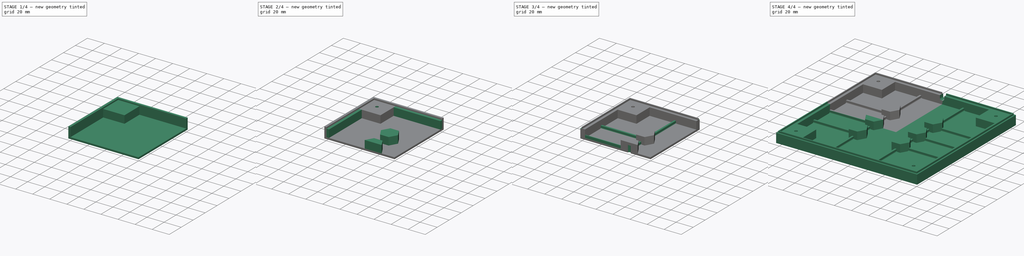
[diagram: build sequence overview — one tinted view per stage of 4, left to right]
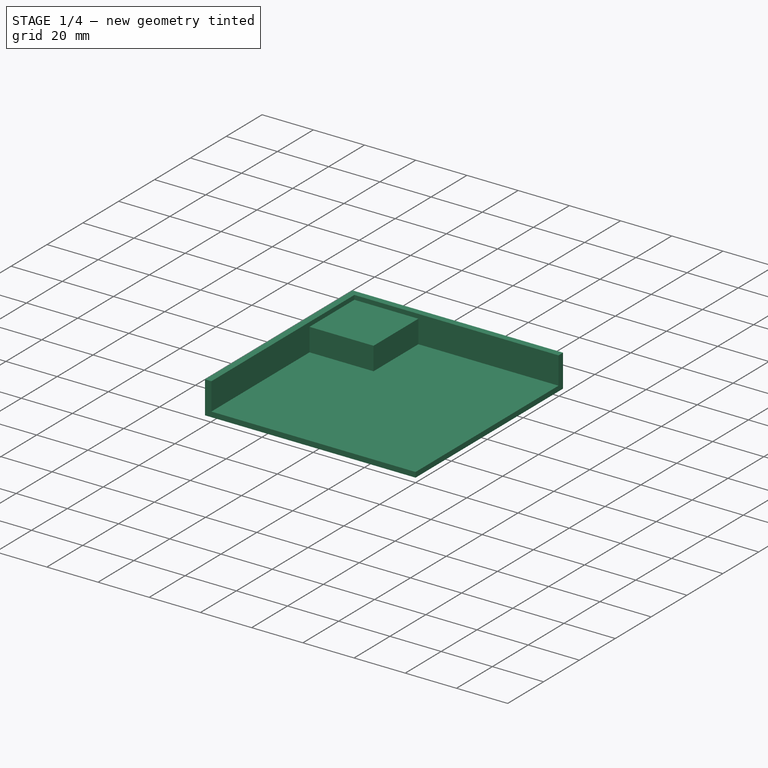
[diagram: stage 1 of 4 — iso view after this stage's code; geometry added in this stage tinted green]
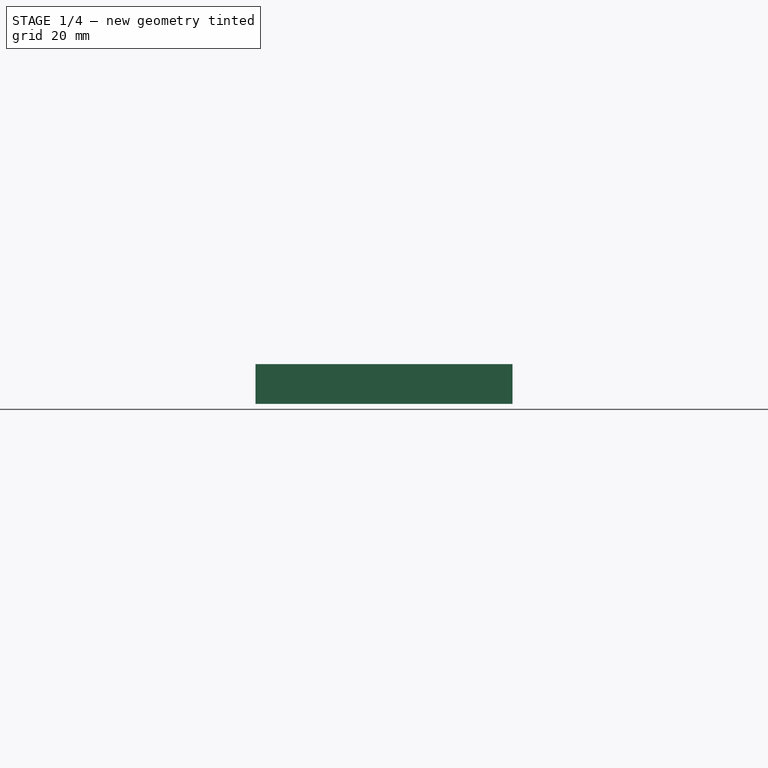
[diagram: stage 1 of 4 — front view after this stage's code; geometry added in this stage tinted green]
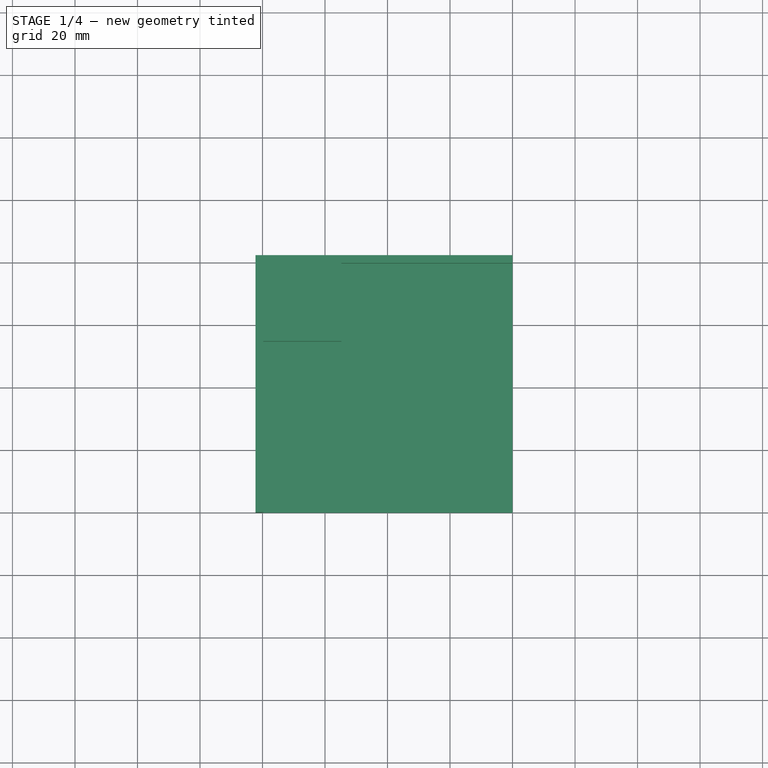
[diagram: stage 1 of 4 — top view after this stage's code; geometry added in this stage tinted green]
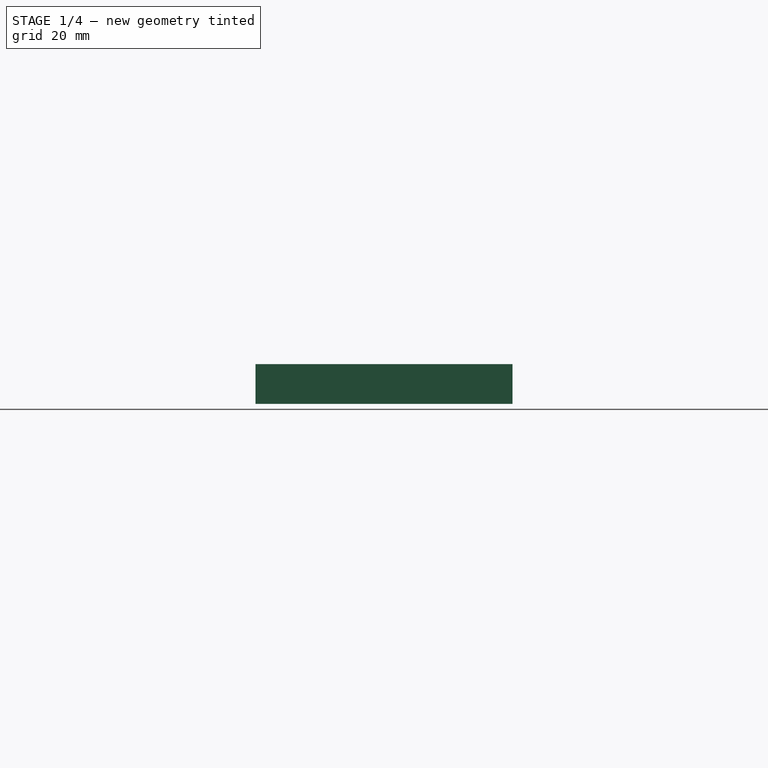
[diagram: stage 1 of 4 — right view after this stage's code; geometry added in this stage tinted green]
FCSTD DOCUMENT  (FreeCAD 0.20R29603 (Git))
Label: case_bottom
License: All rights reserved
LicenseURL: http://en.wikipedia.org/wiki/All_rights_reserved
objects: Sketcher::SketchObject×10, PartDesign::Pad×6, PartDesign::Pocket×4, PartDesign::Fillet×1, PartDesign::Mirrored×1, PartDesign::MultiTransform×1, PartDesign::Body×1, Part::Mirroring×1
note: 36 computed .brp shape members not serialized (recipe doc carries the construction recipe); baked Part::Feature solids carry a one-line shape summary decoded from their .brp

FEATURE [Sketcher::SketchObject] Sketch
  FullyConstrained = true
  MapMode = 5
  Support = -> [XY_Plane]
  sketch-geometry (4):
    g0: LineSegment StartX=0 StartY=0 StartZ=0 EndX=-82.25 EndY=0 EndZ=0
    g1: LineSegment StartX=-82.25 StartY=0 StartZ=0 EndX=-82.25 EndY=82.25 EndZ=0
    g2: LineSegment StartX=-82.25 StartY=82.25 StartZ=0 EndX=0 EndY=82.25 EndZ=0
    g3: LineSegment StartX=0 StartY=82.25 StartZ=0 EndX=0 EndY=0 EndZ=0
  constraints (11):
    c: Coincident(g0,g1)
    c: Coincident(g1,g2)
    c: Coincident(g2,g3)
    c: Coincident(g3,g0)
    c: Horizontal(g0)
    c: Horizontal(g2)
    c: Vertical(g1)
    c: DistanceY(g3,g3) = 82.25
    c: DistanceX(g0,g0) = 82.25
    c: Coincident(g0,g-1)
    c: Vertical(g3)
FEATURE [PartDesign::Pad] Pad
  Direction = (0,0,1)
  Length = 2
  Length2 = 10
  Profile = -> Sketch
  ReferenceAxis = -> Sketch [N_Axis]
  Type = 0
FEATURE [Sketcher::SketchObject] Sketch001
  ExternalGeometry = -> [Pad]
  FullyConstrained = true
  MapMode = 5
  Placement = pos=(0,0,2) rot=(0,0,1;0rad)
  Support = -> [Pad]
  sketch-geometry (6):
    g0: LineSegment StartX=0 StartY=82.25 StartZ=0 EndX=-82.25 EndY=82.25 EndZ=0
    g1: LineSegment StartX=-82.25 StartY=82.25 StartZ=0 EndX=-82.25 EndY=0 EndZ=0
    g2: LineSegment StartX=-82.25 StartY=0 StartZ=0 EndX=-79.75 EndY=0 EndZ=0
    g3: LineSegment StartX=-79.75 StartY=0 StartZ=0 EndX=-79.75 EndY=79.75 EndZ=0
    g4: LineSegment StartX=-79.75 StartY=79.75 StartZ=0 EndX=0 EndY=79.75 EndZ=0
    g5: LineSegment StartX=0 StartY=79.75 StartZ=0 EndX=0 EndY=82.25 EndZ=0
  constraints (15):
    c: Coincident(g0,g-4)
    c: Coincident(g0,g-3)
    c: Coincident(g0,g1)
    c: Coincident(g1,g-5)
    c: Coincident(g1,g2)
    c: Horizontal(g2)
    c: Coincident(g2,g3)
    c: Vertical(g3)
    c: Coincident(g3,g4)
    c: Horizontal(g4)
    c: Coincident(g4,g5)
    c: Coincident(g5,g0)
    c: Vertical(g5)
    c: DistanceY(g5,g5) = 2.5
    c: DistanceX(g2,g2) = 2.5
FEATURE [PartDesign::Pad] Pad001
  BaseFeature = -> Pad
  Direction = (0,0,1)
  Length = 10.7
  Length2 = 10
  Profile = -> Sketch001
  ReferenceAxis = -> Sketch001 [N_Axis]
  Type = 0
FEATURE [Sketcher::SketchObject] Sketch002
  FullyConstrained = false
  MapMode = 5
  Placement = pos=(0,0,2) rot=(0,0,1;0rad)
  Support = -> [Pad001]
  sketch-geometry (4):
    g0: LineSegment StartX=-79.75 StartY=79.75 StartZ=0 EndX=-54.75 EndY=79.75 EndZ=0
    g1: LineSegment StartX=-54.75 StartY=79.75 StartZ=0 EndX=-54.75 EndY=54.75 EndZ=0
    g2: LineSegment StartX=-54.75 StartY=54.75 StartZ=0 EndX=-79.75 EndY=54.75 EndZ=0
    g3: LineSegment StartX=-79.75 StartY=54.75 StartZ=0 EndX=-79.75 EndY=79.75 EndZ=0
  constraints (10):
    c: Coincident(g0,g1)
    c: Coincident(g1,g2)
    c: Coincident(g2,g3)
    c: Coincident(g3,g0)
    c: Horizontal(g0)
    c: Horizontal(g2)
    c: Vertical(g1)
    c: Vertical(g3)
    c: Equal(g2,g1)
    c: DistanceY(g1,g1) = 25
FEATURE [PartDesign::Pad] Pad002
  BaseFeature = -> Pad001
  Direction = (0,0,1)
  Length = 9
  Length2 = 10
  Profile = -> Sketch002
  ReferenceAxis = -> Sketch002 [N_Axis]
  Type = 0
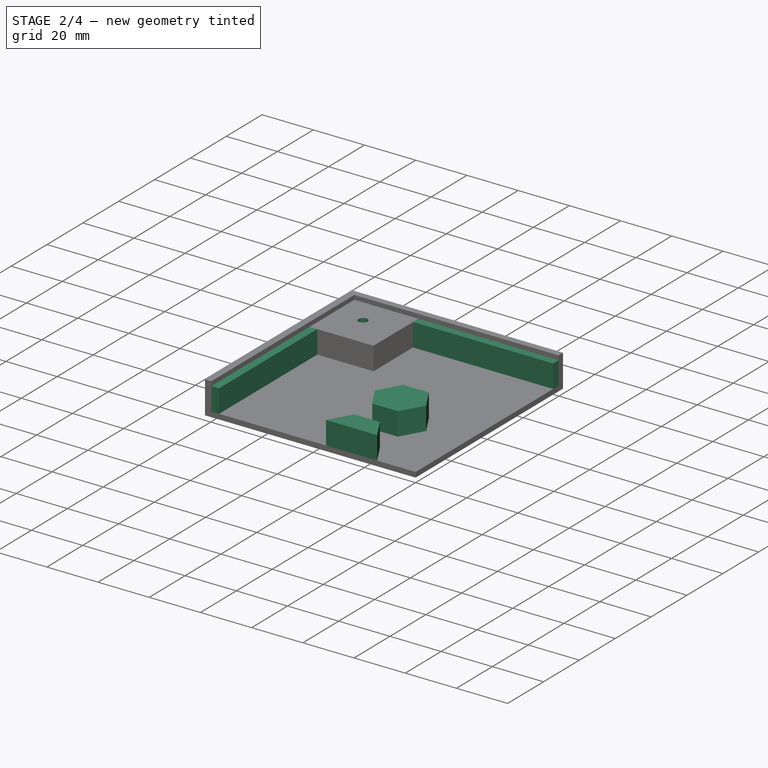
[diagram: stage 2 of 4 — iso view after this stage's code; geometry added in this stage tinted green]
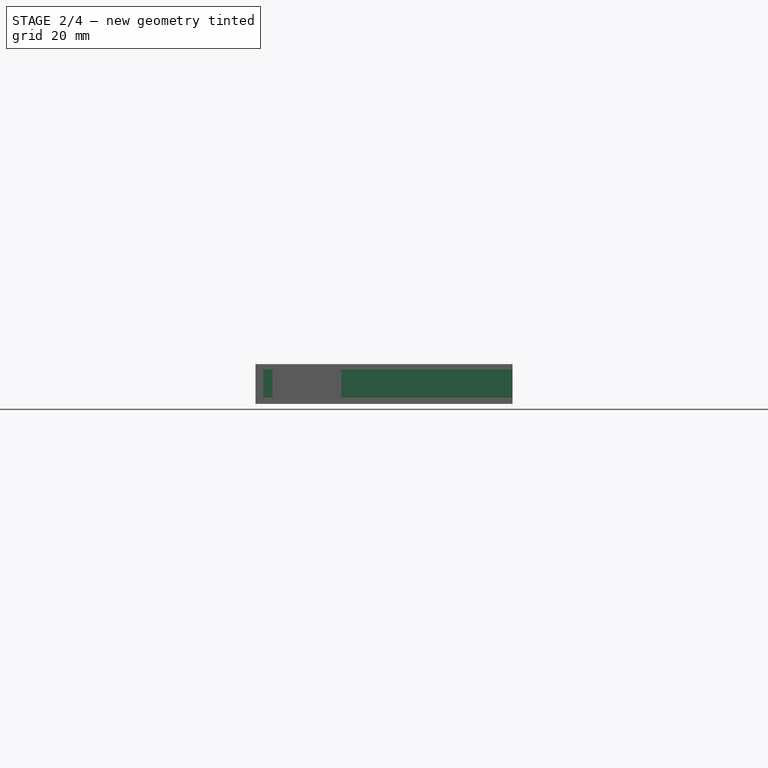
[diagram: stage 2 of 4 — front view after this stage's code; geometry added in this stage tinted green]
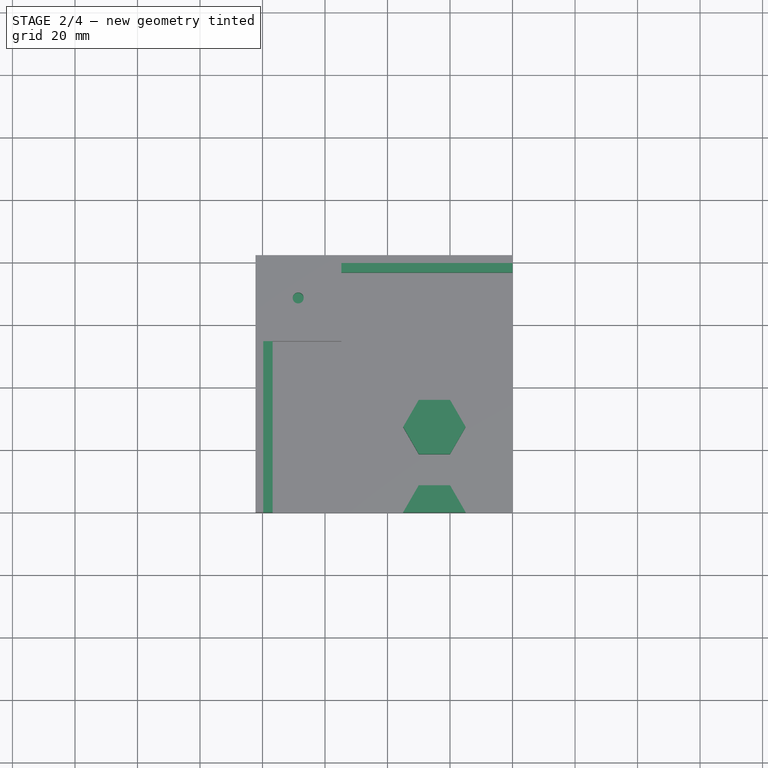
[diagram: stage 2 of 4 — top view after this stage's code; geometry added in this stage tinted green]
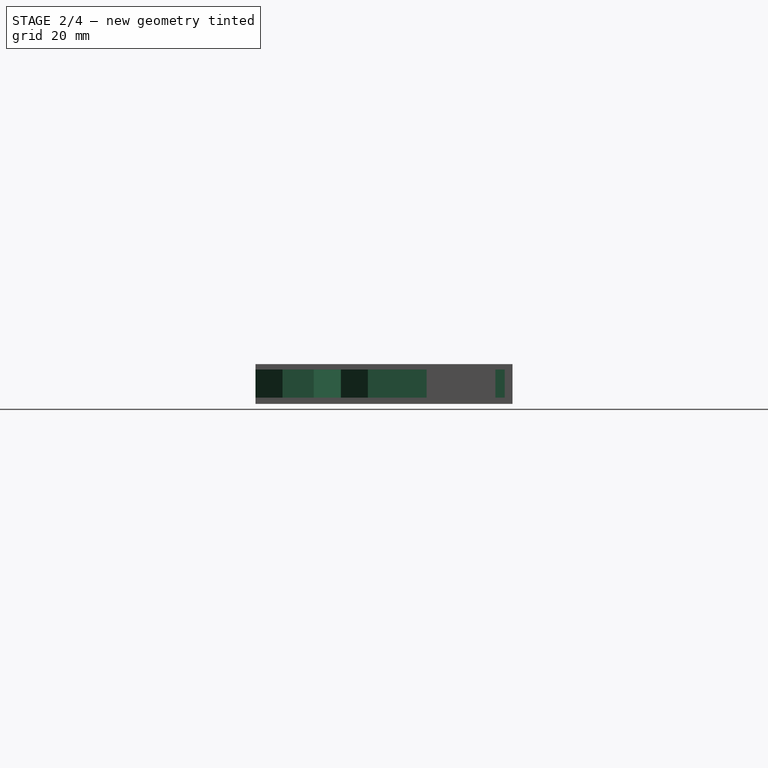
[diagram: stage 2 of 4 — right view after this stage's code; geometry added in this stage tinted green]
FEATURE [Sketcher::SketchObject] Sketch003
  ExternalGeometry = -> [Pad002]
  FullyConstrained = true
  MapMode = 5
  Placement = pos=(0,0,2) rot=(0,0,1;0rad)
  Support = -> [Pad002]
  sketch-geometry (8):
    g0: LineSegment StartX=-54.75 StartY=79.75 StartZ=0 EndX=0 EndY=79.75 EndZ=0
    g1: LineSegment StartX=0 StartY=79.75 StartZ=0 EndX=0 EndY=76.75 EndZ=0
    g2: LineSegment StartX=0 StartY=76.75 StartZ=0 EndX=-54.75 EndY=76.75 EndZ=0
    g3: LineSegment StartX=-54.75 StartY=76.75 StartZ=0 EndX=-54.75 EndY=79.75 EndZ=0
    g4: LineSegment StartX=-79.75 StartY=54.75 StartZ=0 EndX=-76.75 EndY=54.75 EndZ=0
    g5: LineSegment StartX=-76.75 StartY=54.75 StartZ=0 EndX=-76.75 EndY=0 EndZ=0
    g6: LineSegment StartX=-76.75 StartY=0 StartZ=0 EndX=-79.75 EndY=0 EndZ=0
    g7: LineSegment StartX=-79.75 StartY=0 StartZ=0 EndX=-79.75 EndY=54.75 EndZ=0
  constraints (22):
    c: Coincident(g0,g1)
    c: Coincident(g1,g2)
    c: Coincident(g2,g3)
    c: Coincident(g3,g0)
    c: Horizontal(g0)
    c: Horizontal(g2)
    c: Vertical(g1)
    c: Vertical(g3)
    c: Coincident(g0,g-3)
    c: PointOnObject(g1,g-2)
    c: Coincident(g4,g5)
    c: Coincident(g5,g6)
    c: Coincident(g6,g7)
    c: Coincident(g7,g4)
    c: Horizontal(g4)
    c: Horizontal(g6)
    c: Vertical(g5)
    c: Vertical(g7)
    c: Coincident(g4,g-6)
    c: PointOnObject(g5,g-1)
    c: Equal(g6,g1)
    c: DistanceY(g1,g1) = 3
FEATURE [PartDesign::Pad] Pad003
  BaseFeature = -> Pad002
  Direction = (0,0,1)
  Length = 9
  Length2 = 10
  Profile = -> Sketch003
  ReferenceAxis = -> Sketch003 [N_Axis]
  Type = 0
FEATURE [Sketcher::SketchObject] Sketch004
  FullyConstrained = true
  MapMode = 5
  Placement = pos=(0,0,11) rot=(0,0,1;0rad)
  Support = -> [Pad003]
  sketch-geometry (1):
    g0: Circle CenterX=-68.58 CenterY=68.58 CenterZ=0 NormalX=0 NormalY=0 NormalZ=1 AngleXU=0 Radius=1.75
  constraints (3):
    c: DistanceX(g0,g-1) = 68.58
    c: DistanceY(g-1,g0) = 68.58
    c: Diameter(g0) = 3.5
FEATURE [PartDesign::Pocket] Pocket
  BaseFeature = -> Pad003
  Direction = (0,0,-1)
  Length = 8
  Length2 = 5
  Profile = -> Sketch004
  ReferenceAxis = -> Sketch004 [N_Axis]
  Type = 0
FEATURE [Sketcher::SketchObject] Sketch005
  ExternalGeometry = -> [Pocket]
  FullyConstrained = true
  MapMode = 5
  Placement = pos=(0,0,2) rot=(0,0,1;0rad)
  Support = -> [Pocket]
  sketch-geometry (20):
    g0: LineSegment StartX=10 StartY=-30 StartZ=0 EndX=10 EndY=30 EndZ=0
    g1: LineSegment StartX=10 StartY=30 StartZ=0 EndX=-10 EndY=30 EndZ=0
    g2: LineSegment StartX=-10 StartY=30 StartZ=0 EndX=-10 EndY=-30 EndZ=0
    g3: LineSegment StartX=-10 StartY=-30 StartZ=0 EndX=10 EndY=-30 EndZ=0
    g4: GeomPoint X=0 Y=0 Z=0
    g5: LineSegment StartX=-30 StartY=-8.66025 StartZ=0 EndX=-20 EndY=-8.66025 EndZ=0
    g6: LineSegment StartX=-20 StartY=-8.66025 StartZ=0 EndX=-15 EndY=0 EndZ=0
    g7: LineSegment StartX=-15 StartY=0 StartZ=0 EndX=-20 EndY=8.66025 EndZ=0
    g8: LineSegment StartX=-20 StartY=8.66025 StartZ=0 EndX=-30 EndY=8.66025 EndZ=0
    g9: LineSegment StartX=-30 StartY=8.66025 StartZ=0 EndX=-35 EndY=0 EndZ=0
    g10: LineSegment StartX=-35 StartY=0 StartZ=0 EndX=-30 EndY=-8.66025 EndZ=0
    g11: Circle CenterX=-25 CenterY=0 CenterZ=0 NormalX=0 NormalY=0 NormalZ=1 AngleXU=0 Radius=10
    g12: LineSegment StartX=-20 StartY=18.6603 StartZ=0 EndX=-15 EndY=27.3205 EndZ=0
    g13: LineSegment StartX=-15 StartY=27.3205 StartZ=0 EndX=-20 EndY=35.9808 EndZ=0
    g14: LineSegment StartX=-20 StartY=35.9808 StartZ=0 EndX=-30 EndY=35.9808 EndZ=0
    g15: LineSegment StartX=-30 StartY=35.9808 StartZ=0 EndX=-35 EndY=27.3205 EndZ=0
    g16: LineSegment StartX=-35 StartY=27.3205 StartZ=0 EndX=-30 EndY=18.6603 EndZ=0
    g17: LineSegment StartX=-30 StartY=18.6603 StartZ=0 EndX=-20 EndY=18.6603 EndZ=0
    g18: Circle CenterX=-25 CenterY=27.3205 CenterZ=0 NormalX=0 NormalY=0 NormalZ=1 AngleXU=0 Radius=10
    g19: LineSegment StartX=-35 StartY=0 StartZ=0 EndX=-15 EndY=0 EndZ=0
  constraints (48):
    c: Coincident(g0,g1)
    c: Coincident(g1,g2)
    c: Coincident(g2,g3)
    c: Coincident(g3,g0)
    c: Horizontal(g1)
    c: Horizontal(g3)
    c: Vertical(g0)
    c: Vertical(g2)
    c: Symmetric(g1,g0,g4)
    c: Coincident(g4,g-1)
    c: DistanceY(g0,g0) = 60
    c: DistanceX(g3,g3) = 20
    c: Coincident(g5,g6)
    c: Coincident(g6,g7)
    c: Coincident(g7,g8)
    c: Coincident(g8,g9)
    c: Coincident(g9,g10)
    c: Coincident(g10,g5)
    c: Equal(g5, g6-g10) x5
    c: PointOnObject(g5,g11)
    c: PointOnObject(g6,g11)
    c: PointOnObject(g7,g11)
    c: PointOnObject(g8,g11)
    c: PointOnObject(g9,g11)
    c: PointOnObject(g10,g11)
    c: PointOnObject(g11,g-1)
    c: PointOnObject(g9,g-1)
    c: Diameter(g11) = 20
    c: DistanceX(g6,g2) = 5
    c: Coincident(g12,g13)
    c: Coincident(g13,g14)
    c: Coincident(g14,g15)
    c: Coincident(g15,g16)
    c: Coincident(g16,g17)
    c: Coincident(g17,g12)
    c: Equal(g12, g13-g17) x5
    c: PointOnObject(g12,g18)
    c: PointOnObject(g13,g18)
    c: PointOnObject(g14,g18)
    c: PointOnObject(g15,g18)
    c: PointOnObject(g16,g18)
    c: PointOnObject(g17,g18)
    c: Equal(g18,g11)
    c: Vertical(g15,g9)
    c: Horizontal(g16,g12)
    c: DistanceY(g7,g12) = 10
    c: Coincident(g19,g9)
    c: Coincident(g19,g7)
FEATURE [PartDesign::Pad] Pad004
  BaseFeature = -> Pocket
  Direction = (0,0,1)
  Length = 9
  Length2 = 10
  Profile = -> Sketch005
  ReferenceAxis = -> Sketch005 [N_Axis]
  Type = 0
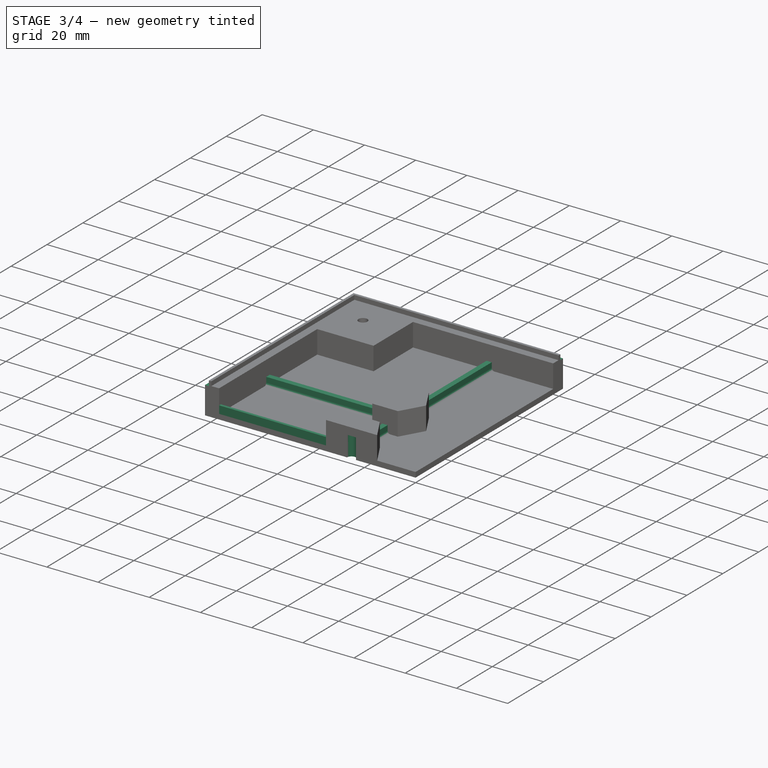
[diagram: stage 3 of 4 — iso view after this stage's code; geometry added in this stage tinted green]
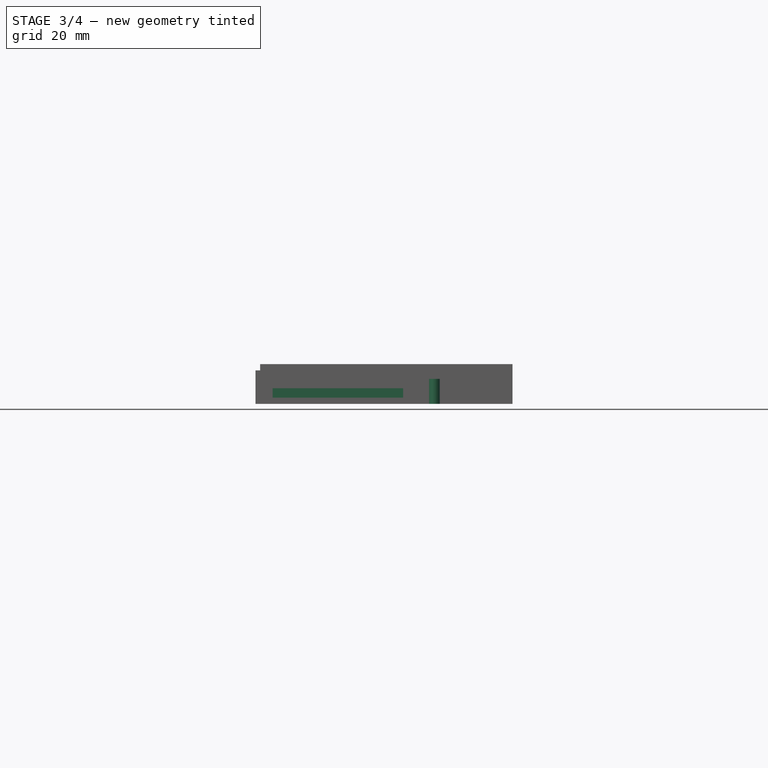
[diagram: stage 3 of 4 — front view after this stage's code; geometry added in this stage tinted green]
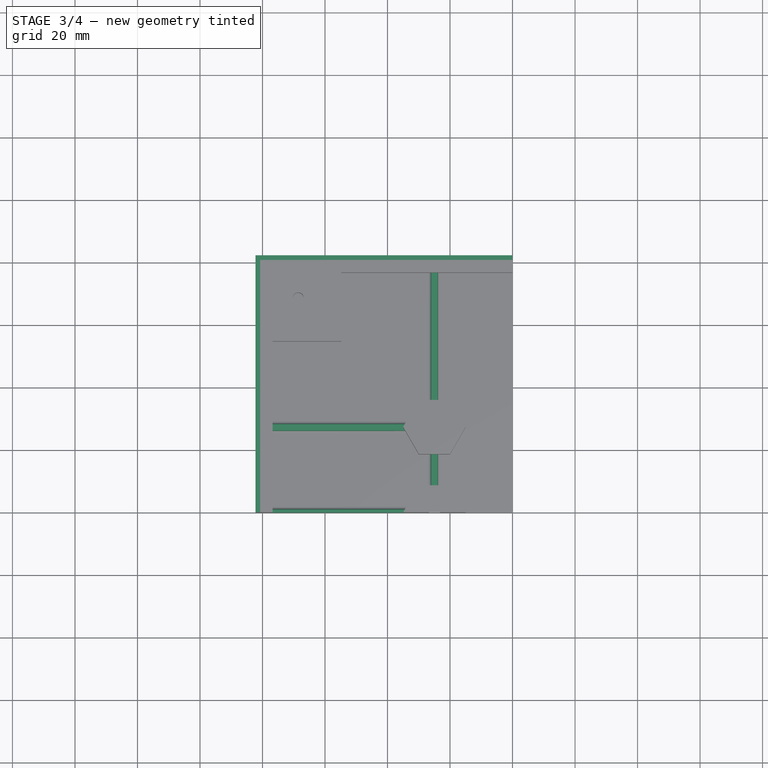
[diagram: stage 3 of 4 — top view after this stage's code; geometry added in this stage tinted green]
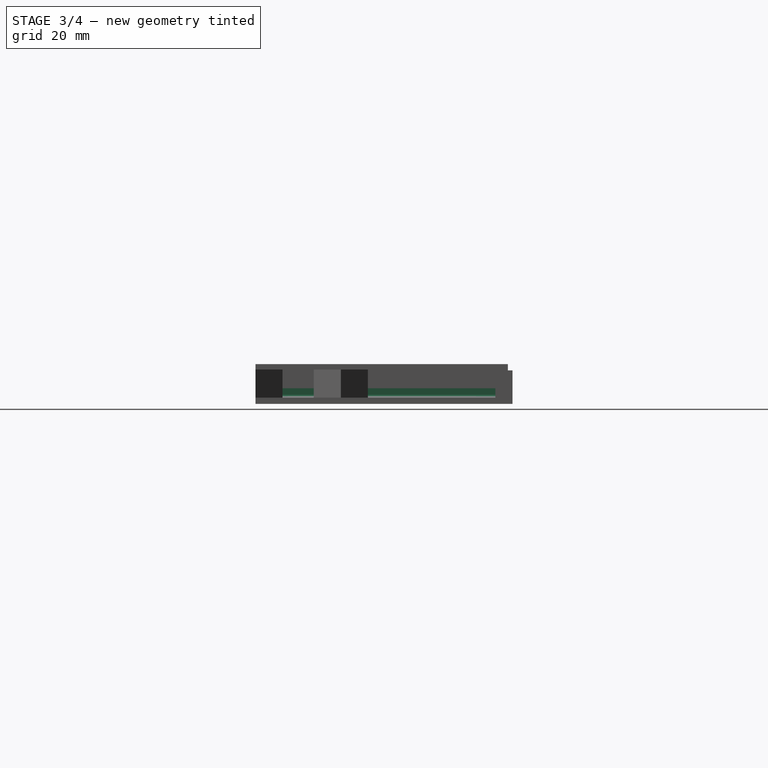
[diagram: stage 3 of 4 — right view after this stage's code; geometry added in this stage tinted green]
FEATURE [Sketcher::SketchObject] Sketch006
  ExternalGeometry = -> [Pad004]
  FullyConstrained = true
  MapMode = 5
  Placement = pos=(0,0,2) rot=(0,0,1;0rad)
  Support = -> [Pad004]
  sketch-geometry (19):
    g0: LineSegment StartX=-26 StartY=35.9808 StartZ=0 EndX=-24 EndY=35.9808 EndZ=0
    g1: LineSegment StartX=-24 StartY=35.9808 StartZ=0 EndX=-24 EndY=76.75 EndZ=0
    g2: LineSegment StartX=-24 StartY=76.75 StartZ=0 EndX=-26 EndY=76.75 EndZ=0
    g3: LineSegment StartX=-26 StartY=76.75 StartZ=0 EndX=-26 EndY=35.9808 EndZ=0
    g4: LineSegment StartX=-26 StartY=18.6603 StartZ=0 EndX=-24 EndY=18.6603 EndZ=0
    g5: LineSegment StartX=-24 StartY=18.6603 StartZ=0 EndX=-24 EndY=8.66025 EndZ=0
    g6: LineSegment StartX=-24 StartY=8.66025 StartZ=0 EndX=-26 EndY=8.66025 EndZ=0
    g7: LineSegment StartX=-26 StartY=8.66025 StartZ=0 EndX=-26 EndY=18.6603 EndZ=0
    g8: LineSegment StartX=-76.75 StartY=0 StartZ=0 EndX=-76.75 EndY=1 EndZ=0
    g9: LineSegment StartX=-76.75 StartY=1 StartZ=0 EndX=-34.4226 EndY=1 EndZ=0
    g10: LineSegment StartX=-34.4226 StartY=1 StartZ=0 EndX=-35 EndY=-2e-16 EndZ=0
    g11: LineSegment StartX=-35 StartY=-2e-16 StartZ=0 EndX=-76.75 EndY=0 EndZ=0
    g12: LineSegment StartX=-76.75 StartY=28.3205 StartZ=0 EndX=-34.4226 EndY=28.3205 EndZ=0
    g13: LineSegment StartX=-34.4226 StartY=28.3205 StartZ=0 EndX=-35 EndY=27.3205 EndZ=0
    g14: LineSegment StartX=-35 StartY=27.3205 StartZ=0 EndX=-34.4226 EndY=26.3205 EndZ=0
    g15: LineSegment StartX=-34.4226 StartY=26.3205 StartZ=0 EndX=-76.75 EndY=26.3205 EndZ=0
    g16: LineSegment StartX=-76.75 StartY=26.3205 StartZ=0 EndX=-76.75 EndY=28.3205 EndZ=0
    g17: GeomPoint X=-25 Y=35.9808 Z=0
    g18: GeomPoint X=-25 Y=8.66025 Z=0
  constraints (48):
    c: Coincident(g0,g1)
    c: Coincident(g1,g2)
    c: Coincident(g2,g3)
    c: Coincident(g3,g0)
    c: Horizontal(g0)
    c: Horizontal(g2)
    c: Vertical(g1)
    c: Vertical(g3)
    c: PointOnObject(g1,g-9)
    c: Coincident(g4,g5)
    c: Coincident(g5,g6)
    c: Coincident(g6,g7)
    c: Coincident(g7,g4)
    c: Horizontal(g4)
    c: Horizontal(g6)
    c: Vertical(g5)
    c: Vertical(g7)
    c: PointOnObject(g4,g-4)
    c: Coincident(g-6,g8)
    c: PointOnObject(g8,g-6)
    c: Coincident(g8,g9)
    c: PointOnObject(g9,g-10)
    c: Horizontal(g9)
    c: Coincident(g9,g10)
    c: Coincident(g10,g-10)
    c: Coincident(g10,g11)
    c: Coincident(g11,g8)
    c: PointOnObject(g12,g-6)
    c: PointOnObject(g12,g-12)
    c: Horizontal(g12)
    c: Coincident(g12,g13)
    c: Coincident(g13,g-12)
    c: Coincident(g13,g14)
    c: PointOnObject(g14,g-11)
    c: Coincident(g14,g15)
    c: PointOnObject(g15,g-6)
    c: Horizontal(g15)
    c: Coincident(g15,g16)
    c: Coincident(g16,g12)
    c: DistanceX(g2,g2) = 2
    c: DistanceY(g13,g12) = 1
    c: DistanceY(g14,g13) = 1
    c: Symmetric(g-12,g-3,g17)
    c: Symmetric(g0,g0,g17)
    c: Symmetric(g-10,g-5,g18)
    c: Symmetric(g6,g5,g18)
    c: DistanceX(g4,g4) = 2
    c: DistanceY(g8,g8) = 1
FEATURE [PartDesign::Pad] Pad005
  BaseFeature = -> Pad004
  Direction = (0,0,1)
  Length = 3
  Length2 = 10
  Profile = -> Sketch006
  ReferenceAxis = -> Sketch006 [N_Axis]
  Type = 0
FEATURE [PartDesign::Fillet] Fillet
  Base = -> Pad005 [Edge118,Edge108,Edge107,Edge106,Edge116,Edge20,Edge25]
  BaseFeature = -> Pad005
  Radius = 1
  SupportTransform = false
  UseAllEdges = false
FEATURE [Sketcher::SketchObject] Sketch007
  ExternalGeometry = -> [Fillet]
  FullyConstrained = true
  MapMode = 5
  Placement = pos=(0,0,0) rot=(1,0,0;3.14159rad)
  Support = -> [Fillet]
  sketch-geometry (6):
    g0: Circle CenterX=-63 CenterY=-63 CenterZ=0 NormalX=0 NormalY=0 NormalZ=1 AngleXU=0 Radius=1.75
    g1: LineSegment StartX=-25 StartY=-18.6603 StartZ=0 EndX=-25 EndY=-35.9808 EndZ=0
    g2: LineSegment StartX=-25 StartY=-8.66025 StartZ=0 EndX=-25 EndY=0 EndZ=0
    g3: Circle CenterX=-25 CenterY=0 CenterZ=0 NormalX=0 NormalY=0 NormalZ=1 AngleXU=0 Radius=1.75
    g4: GeomPoint X=-25 Y=-27.3205 Z=0
    g5: Circle CenterX=-25 CenterY=-27.3205 CenterZ=0 NormalX=0 NormalY=0 NormalZ=1 AngleXU=0 Radius=1.75
  constraints (14):
    c: Diameter(g0) = 3.5
    c: DistanceX(g0,g-1) = 63
    c: DistanceY(g0,g-1) = 63
    c: PointOnObject(g1,g-4)
    c: Vertical(g1)
    c: Symmetric(g-3,g-3,g1)
    c: PointOnObject(g2,g-1)
    c: Vertical(g2)
    c: Symmetric(g-5,g-5,g2)
    c: Coincident(g3,g2)
    c: Symmetric(g1,g1,g4)
    c: Coincident(g5,g4)
    c: Equal(g5,g3)
    c: Equal(g3,g0)
FEATURE [PartDesign::Pocket] Pocket001
  BaseFeature = -> Fillet
  Direction = (0,0,1)
  Length = 8
  Length2 = 5
  Profile = -> Sketch007
  ReferenceAxis = -> Sketch007 [N_Axis]
  Type = 0
FEATURE [Sketcher::SketchObject] Sketch008
  ExternalGeometry = -> [Pocket001]
  FullyConstrained = true
  MapMode = 5
  Placement = pos=(0,0,12.7) rot=(0,0,1;0rad)
  Support = -> [Pocket001]
  sketch-geometry (6):
    g0: LineSegment StartX=0 StartY=82.25 StartZ=0 EndX=-82.25 EndY=82.25 EndZ=0
    g1: LineSegment StartX=-82.25 StartY=82.25 StartZ=0 EndX=-82.25 EndY=0 EndZ=0
    g2: LineSegment StartX=-82.25 StartY=0 StartZ=0 EndX=-80.75 EndY=0 EndZ=0
    g3: LineSegment StartX=-80.75 StartY=0 StartZ=0 EndX=-80.75 EndY=80.75 EndZ=0
    g4: LineSegment StartX=-80.75 StartY=80.75 StartZ=0 EndX=0 EndY=80.75 EndZ=0
    g5: LineSegment StartX=0 StartY=80.75 StartZ=0 EndX=0 EndY=82.25 EndZ=0
  constraints (15):
    c: Coincident(g-3,g0)
    c: Coincident(g0,g-4)
    c: Coincident(g0,g1)
    c: Coincident(g1,g-4)
    c: Coincident(g1,g2)
    c: Horizontal(g2)
    c: Coincident(g2,g3)
    c: Vertical(g3)
    c: Coincident(g3,g4)
    c: Horizontal(g4)
    c: Coincident(g4,g5)
    c: Coincident(g5,g0)
    c: Vertical(g5)
    c: DistanceX(g0,g3) = 1.5
    c: DistanceY(g3,g0) = 1.5
FEATURE [PartDesign::Pocket] Pocket002
  BaseFeature = -> Pocket001
  Direction = (0,0,-1)
  Length = 2
  Length2 = 5
  Profile = -> Sketch008
  ReferenceAxis = -> Sketch008 [N_Axis]
  Type = 0
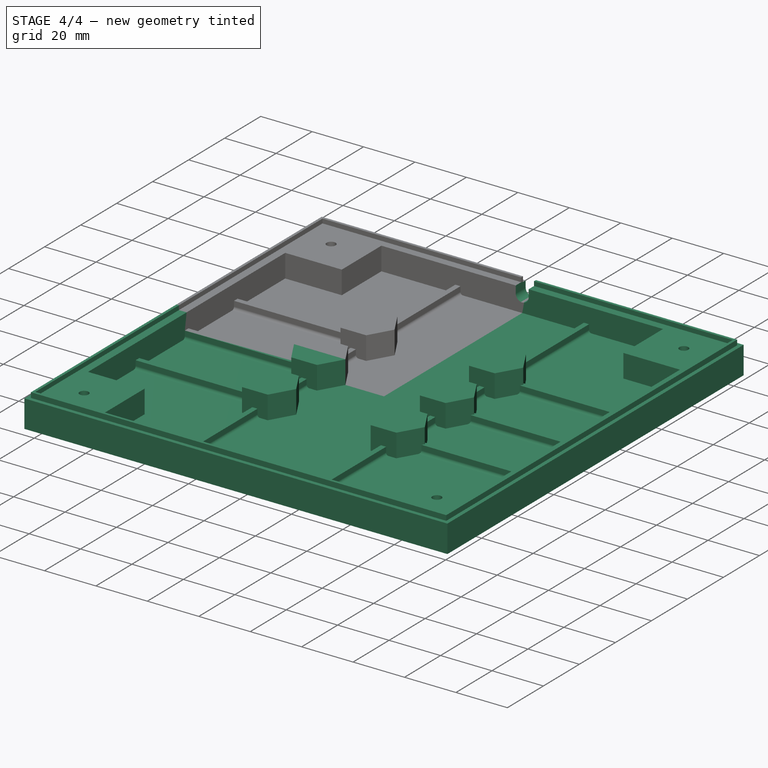
[diagram: stage 4 of 4 — iso view after this stage's code; geometry added in this stage tinted green]
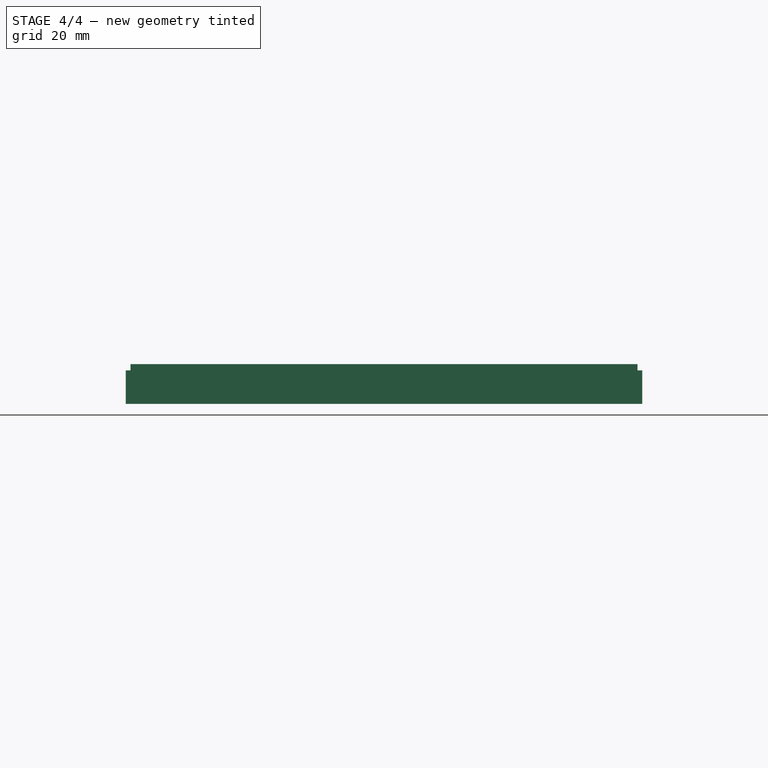
[diagram: stage 4 of 4 — front view after this stage's code; geometry added in this stage tinted green]
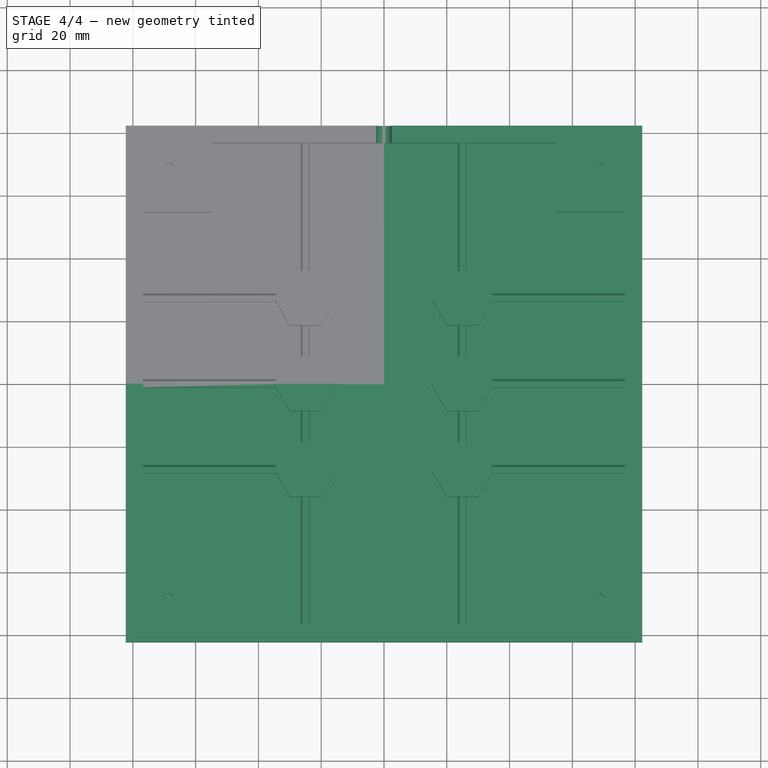
[diagram: stage 4 of 4 — top view after this stage's code; geometry added in this stage tinted green]
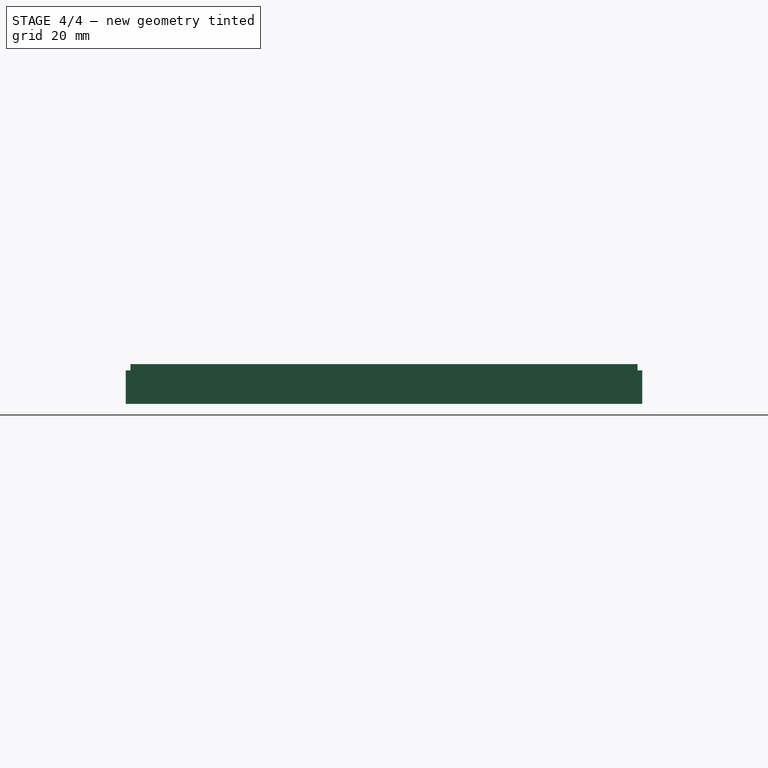
[diagram: stage 4 of 4 — right view after this stage's code; geometry added in this stage tinted green]
FEATURE [Sketcher::SketchObject] Sketch009
  ExternalGeometry = -> [Pocket002]
  FullyConstrained = true
  MapMode = 5
  Placement = pos=(0,76.75,0) rot=(1,0,0;1.5708rad)
  Support = -> [Pocket002]
  sketch-geometry (4):
    g0: ArcOfCircle CenterX=2e-16 CenterY=8.2 CenterZ=0 NormalX=0 NormalY=0 NormalZ=1 AngleXU=0 Radius=2.5 StartAngle=3.14159 EndAngle=6.28319
    g1: ArcOfCircle CenterX=0 CenterY=12.7 CenterZ=0 NormalX=0 NormalY=0 NormalZ=1 AngleXU=0 Radius=2.5 StartAngle=0 EndAngle=3.14159
    g2: LineSegment StartX=2.5 StartY=8.2 StartZ=0 EndX=2.5 EndY=12.7 EndZ=0
    g3: LineSegment StartX=-2.5 StartY=12.7 StartZ=0 EndX=-2.5 EndY=8.2 EndZ=0
  constraints (9):
    c: Tangent(g0,g2) = -1.5708
    c: Tangent(g2,g1) = -1.5708
    c: Tangent(g1,g3) = -1.5708
    c: Tangent(g3,g0) = -1.5708
    c: Equal(g0,g1)
    c: Coincident(g1,g-3)
    c: Vertical(g2)
    c: DistanceX(g0,g0) = 2.5
    c: DistanceY(g-1,g0) = 8.2
FEATURE [PartDesign::Mirrored] Mirrored
  MirrorPlane = -> Sketch [V_Axis]
FEATURE [PartDesign::MultiTransform] MultiTransform
  BaseFeature = -> Pocket002
  Originals = -> [Pad,Pad001,Pad002,Pad003,Pocket,Pad004,Pad005,Fillet,Pocket001,Pocket002]
  Transformations = -> [Mirrored]
FEATURE [PartDesign::Pocket] Pocket003
  BaseFeature = -> MultiTransform
  Direction = (0,1,-2e-16)
  Length = 8
  Length2 = 5
  Profile = -> Sketch009
  ReferenceAxis = -> Sketch009 [N_Axis]
  Type = 0
FEATURE [PartDesign::Body] Body
  Group = -> [Sketch,Pad,Sketch001,Pad001,Sketch002,Pad002,Sketch003,Pad003,Sketch004,Pocket,Sketch005,Pad004,Sketch006,Pad005,Fillet,Sketch007,Pocket001,Sketch008,Pocket002,Sketch009,MultiTransform,Mirrored,Pocket003]
  Origin = -> Origin
  Tip = -> Pocket003
FEATURE [Part::Mirroring] Part__Mirroring  label="MultiTransform (Mirror #1)"
  Base = (0,0,0)
  Normal = (0,1,0)
  Source = -> MultiTransform
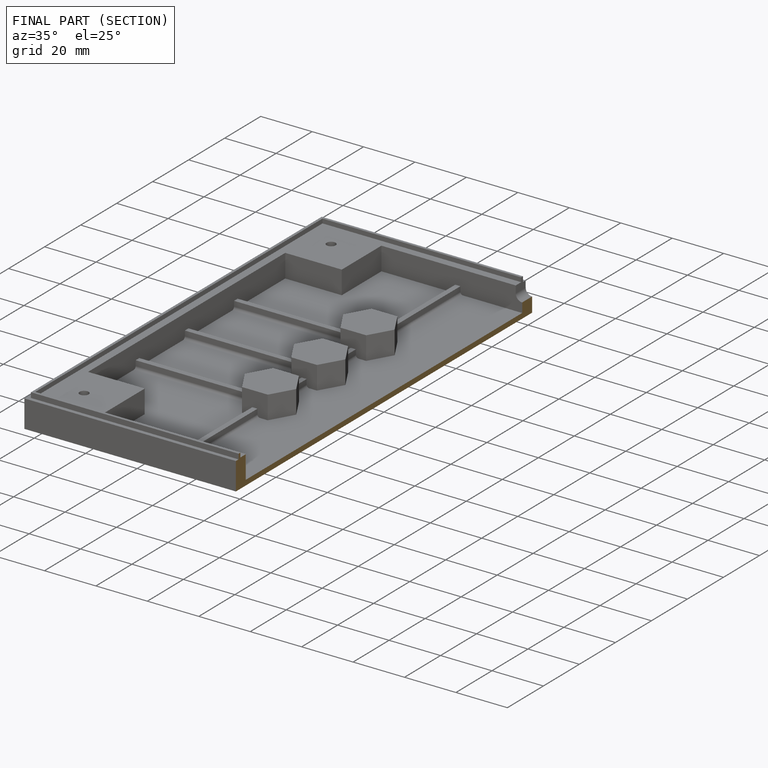
[diagram: finished part — half-section view (interior)]
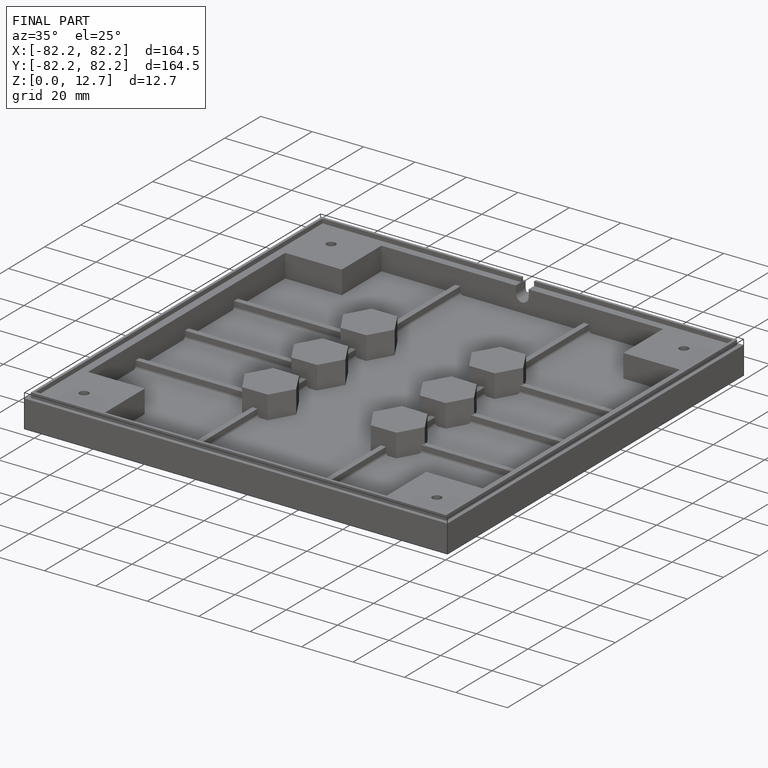
[diagram: finished part — iso view with bounding-box wireframe]
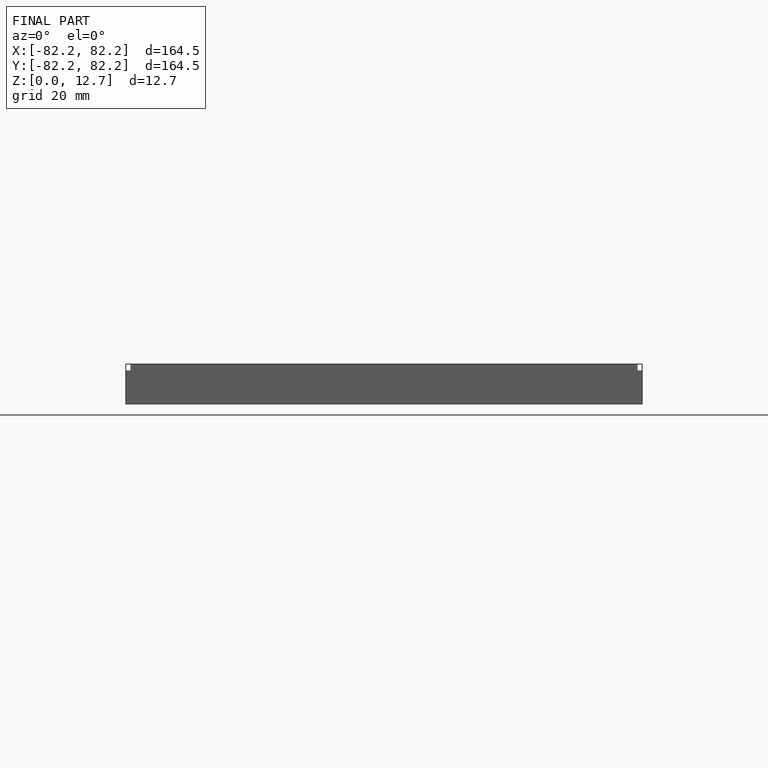
[diagram: finished part — front view with bounding-box wireframe]
